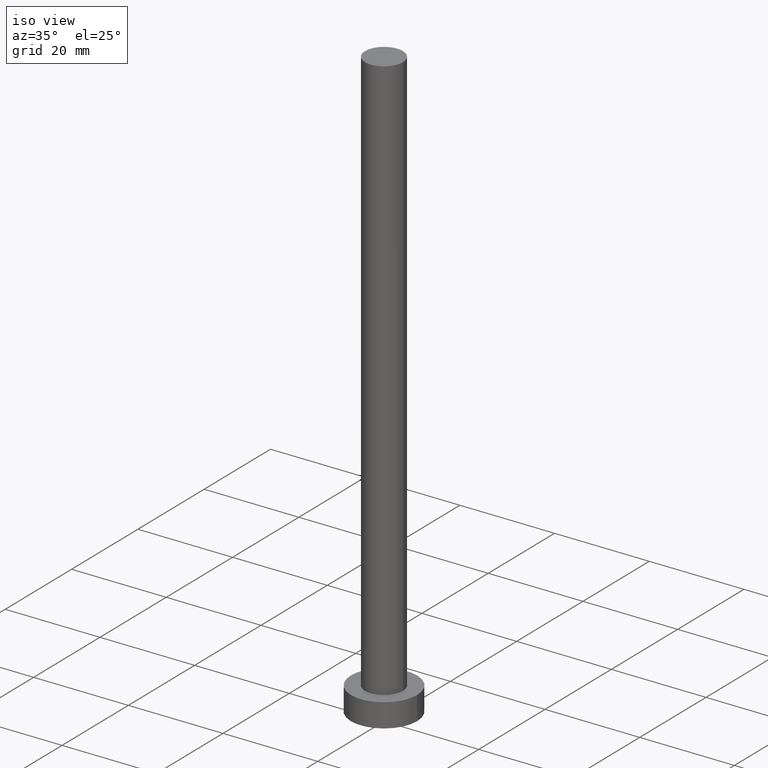
[diagram: clean part render]
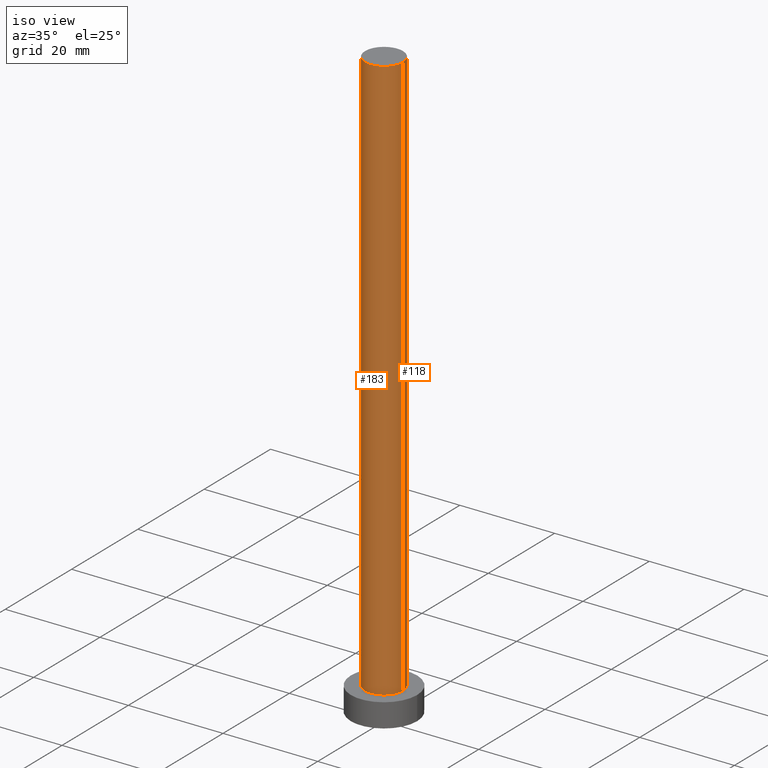
[diagram: same view with one multi-face feature highlighted, each face labeled with its STEP entity id]
A machine part, iso view. The highlighted faces form ONE feature: a constant-radius fillet chain: 2 tangent blend faces with common blend radius 4 mm. The faces share edges in the B-rep.
Their STEP definitions:
[1] entity #183 (Cylinder):
#1 = LINE ( 'NONE', #110, #211 ) ;
#3 = CARTESIAN_POINT ( 'NONE',  ( 0.000000000000000000, 0.000000000000000000, 125.0000000000000000 ) ) ;
#4 = CARTESIAN_POINT ( 'NONE',  ( 0.000000000000000000, 0.000000000000000000, 125.0000000000000000 ) ) ;
#8 = ORIENTED_EDGE ( 'NONE', *, *, #125, .T. ) ;
#21 = LINE ( 'NONE', #250, #86 ) ;
#24 = DIRECTION ( 'NONE',  ( -0.000000000000000000, -0.000000000000000000, -1.000000000000000000 ) ) ;
#34 = AXIS2_PLACEMENT_3D ( 'NONE', #4, #179, #148 ) ;
#39 = CIRCLE ( 'NONE', #34, 4.000000000000000000 ) ;
#48 = EDGE_CURVE ( 'NONE', #121, #171, #91, .T. ) ;
#52 = VERTEX_POINT ( 'NONE', #164 ) ;
#56 = DIRECTION ( 'NONE',  ( -0.000000000000000000, -0.000000000000000000, -1.000000000000000000 ) ) ;
#58 = DIRECTION ( 'NONE',  ( 1.000000000000000000, 0.000000000000000000, 0.000000000000000000 ) ) ;
#60 = DIRECTION ( 'NONE',  ( -1.000000000000000000, 0.000000000000000000, 0.000000000000000000 ) ) ;
#61 = CYLINDRICAL_SURFACE ( 'NONE', #245, 4.000000000000000000 ) ;
#76 = DIRECTION ( 'NONE',  ( 0.000000000000000000, 0.000000000000000000, 1.000000000000000000 ) ) ;
#85 = CARTESIAN_POINT ( 'NONE',  ( 4.000000000000000000, 4.898587196589412829E-16, 125.0000000000000000 ) ) ;
#86 = VECTOR ( 'NONE', #56, 1000.000000000000000 ) ;
#91 = CIRCLE ( 'NONE', #216, 4.000000000000000000 ) ;
#93 = EDGE_CURVE ( 'NONE', #155, #171, #21, .T. ) ;
#94 = ORIENTED_EDGE ( 'NONE', *, *, #48, .T. ) ;
#110 = CARTESIAN_POINT ( 'NONE',  ( -4.000000000000000000, 0.000000000000000000, 125.0000000000000000 ) ) ;
#121 = VERTEX_POINT ( 'NONE', #150 ) ;
#125 = EDGE_CURVE ( 'NONE', #52, #121, #1, .T. ) ;
#131 = CARTESIAN_POINT ( 'NONE',  ( 4.000000000000000000, 4.898587196589412829E-16, 5.000000000000000000 ) ) ;
#148 = DIRECTION ( 'NONE',  ( 1.000000000000000000, 0.000000000000000000, 0.000000000000000000 ) ) ;
#150 = CARTESIAN_POINT ( 'NONE',  ( -4.000000000000000000, 0.000000000000000000, 5.000000000000000000 ) ) ;
#155 = VERTEX_POINT ( 'NONE', #85 ) ;
#164 = CARTESIAN_POINT ( 'NONE',  ( -4.000000000000000000, 0.000000000000000000, 125.0000000000000000 ) ) ;
#171 = VERTEX_POINT ( 'NONE', #131 ) ;
#179 = DIRECTION ( 'NONE',  ( 0.000000000000000000, 0.000000000000000000, 1.000000000000000000 ) ) ;
#183 = ADVANCED_FACE ( 'NONE', ( #240 ), #61, .T. ) ;
#196 = CARTESIAN_POINT ( 'NONE',  ( 0.000000000000000000, 0.000000000000000000, 5.000000000000000000 ) ) ;
#198 = ORIENTED_EDGE ( 'NONE', *, *, #93, .F. ) ;
#211 = VECTOR ( 'NONE', #24, 1000.000000000000000 ) ;
#216 = AXIS2_PLACEMENT_3D ( 'NONE', #196, #76, #58 ) ;
#217 = DIRECTION ( 'NONE',  ( -0.000000000000000000, -0.000000000000000000, -1.000000000000000000 ) ) ;
#219 = EDGE_LOOP ( 'NONE', ( #198, #244, #8, #94 ) ) ;
#226 = EDGE_CURVE ( 'NONE', #52, #155, #39, .T. ) ;
#240 = FACE_OUTER_BOUND ( 'NONE', #219, .T. ) ;
#244 = ORIENTED_EDGE ( 'NONE', *, *, #226, .F. ) ;
#245 = AXIS2_PLACEMENT_3D ( 'NONE', #3, #217, #60 ) ;
#250 = CARTESIAN_POINT ( 'NONE',  ( 4.000000000000000000, 4.898587196589412829E-16, 125.0000000000000000 ) ) ;
[2] entity #118 (Cylinder):
#1 = LINE ( 'NONE', #110, #211 ) ;
#5 = AXIS2_PLACEMENT_3D ( 'NONE', #43, #203, #212 ) ;
#21 = LINE ( 'NONE', #250, #86 ) ;
#24 = DIRECTION ( 'NONE',  ( -0.000000000000000000, -0.000000000000000000, -1.000000000000000000 ) ) ;
#33 = CYLINDRICAL_SURFACE ( 'NONE', #70, 4.000000000000000000 ) ;
#43 = CARTESIAN_POINT ( 'NONE',  ( 0.000000000000000000, 0.000000000000000000, 5.000000000000000000 ) ) ;
#52 = VERTEX_POINT ( 'NONE', #164 ) ;
#56 = DIRECTION ( 'NONE',  ( -0.000000000000000000, -0.000000000000000000, -1.000000000000000000 ) ) ;
#69 = ORIENTED_EDGE ( 'NONE', *, *, #200, .T. ) ;
#70 = AXIS2_PLACEMENT_3D ( 'NONE', #98, #174, #141 ) ;
#72 = EDGE_LOOP ( 'NONE', ( #134, #137, #69, #114 ) ) ;
#77 = EDGE_CURVE ( 'NONE', #155, #52, #81, .T. ) ;
#81 = CIRCLE ( 'NONE', #230, 4.000000000000000000 ) ;
#85 = CARTESIAN_POINT ( 'NONE',  ( 4.000000000000000000, 4.898587196589412829E-16, 125.0000000000000000 ) ) ;
#86 = VECTOR ( 'NONE', #56, 1000.000000000000000 ) ;
#93 = EDGE_CURVE ( 'NONE', #155, #171, #21, .T. ) ;
#98 = CARTESIAN_POINT ( 'NONE',  ( 0.000000000000000000, 0.000000000000000000, 125.0000000000000000 ) ) ;
#110 = CARTESIAN_POINT ( 'NONE',  ( -4.000000000000000000, 0.000000000000000000, 125.0000000000000000 ) ) ;
#114 = ORIENTED_EDGE ( 'NONE', *, *, #125, .F. ) ;
#118 = ADVANCED_FACE ( 'NONE', ( #207 ), #33, .T. ) ;
#121 = VERTEX_POINT ( 'NONE', #150 ) ;
#125 = EDGE_CURVE ( 'NONE', #52, #121, #1, .T. ) ;
#131 = CARTESIAN_POINT ( 'NONE',  ( 4.000000000000000000, 4.898587196589412829E-16, 5.000000000000000000 ) ) ;
#134 = ORIENTED_EDGE ( 'NONE', *, *, #77, .F. ) ;
#137 = ORIENTED_EDGE ( 'NONE', *, *, #93, .T. ) ;
#141 = DIRECTION ( 'NONE',  ( -1.000000000000000000, 0.000000000000000000, 0.000000000000000000 ) ) ;
#144 = CARTESIAN_POINT ( 'NONE',  ( 0.000000000000000000, 0.000000000000000000, 125.0000000000000000 ) ) ;
#150 = CARTESIAN_POINT ( 'NONE',  ( -4.000000000000000000, 0.000000000000000000, 5.000000000000000000 ) ) ;
#155 = VERTEX_POINT ( 'NONE', #85 ) ;
#164 = CARTESIAN_POINT ( 'NONE',  ( -4.000000000000000000, 0.000000000000000000, 125.0000000000000000 ) ) ;
#171 = VERTEX_POINT ( 'NONE', #131 ) ;
#174 = DIRECTION ( 'NONE',  ( -0.000000000000000000, -0.000000000000000000, -1.000000000000000000 ) ) ;
#188 = DIRECTION ( 'NONE',  ( 1.000000000000000000, 0.000000000000000000, 0.000000000000000000 ) ) ;
#200 = EDGE_CURVE ( 'NONE', #171, #121, #225, .T. ) ;
#203 = DIRECTION ( 'NONE',  ( 0.000000000000000000, 0.000000000000000000, 1.000000000000000000 ) ) ;
#207 = FACE_OUTER_BOUND ( 'NONE', #72, .T. ) ;
#210 = DIRECTION ( 'NONE',  ( 0.000000000000000000, 0.000000000000000000, 1.000000000000000000 ) ) ;
#211 = VECTOR ( 'NONE', #24, 1000.000000000000000 ) ;
#212 = DIRECTION ( 'NONE',  ( 1.000000000000000000, 0.000000000000000000, 0.000000000000000000 ) ) ;
#225 = CIRCLE ( 'NONE', #5, 4.000000000000000000 ) ;
#230 = AXIS2_PLACEMENT_3D ( 'NONE', #144, #210, #188 ) ;
#250 = CARTESIAN_POINT ( 'NONE',  ( 4.000000000000000000, 4.898587196589412829E-16, 125.0000000000000000 ) ) ;